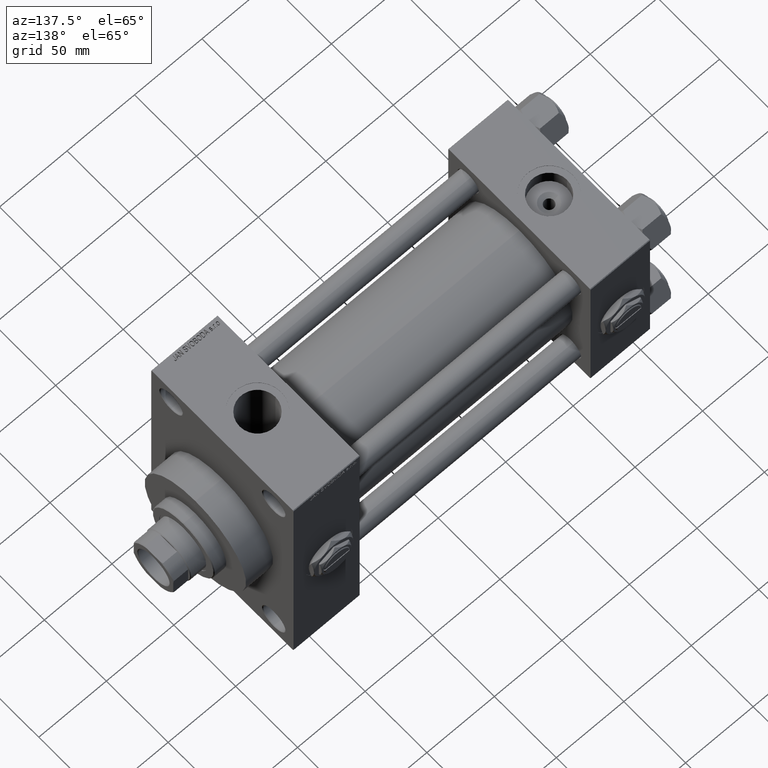
[diagram: clean part render]
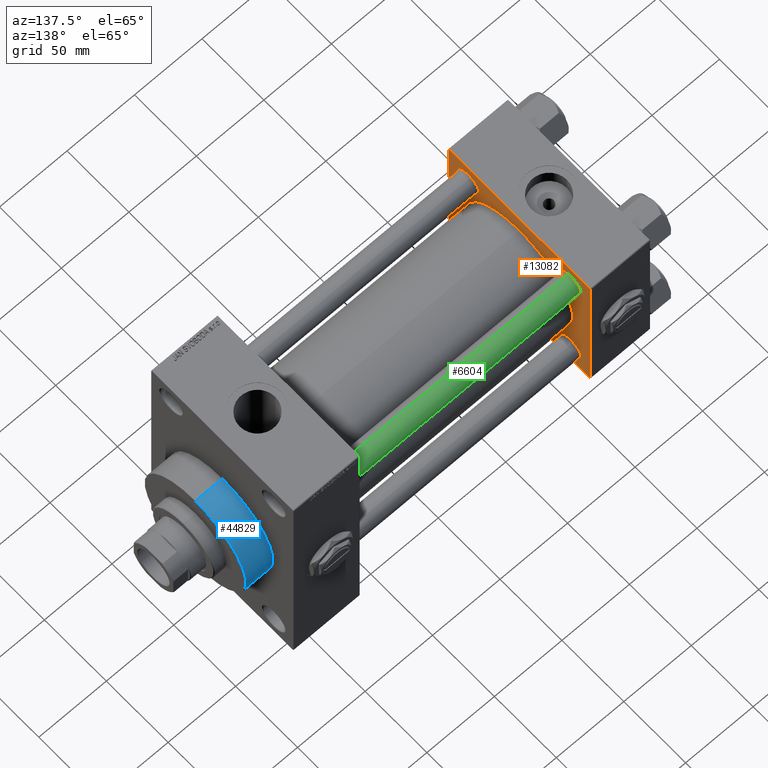
[diagram: same view with three faces highlighted in distinct colors, each labeled with its STEP entity id]
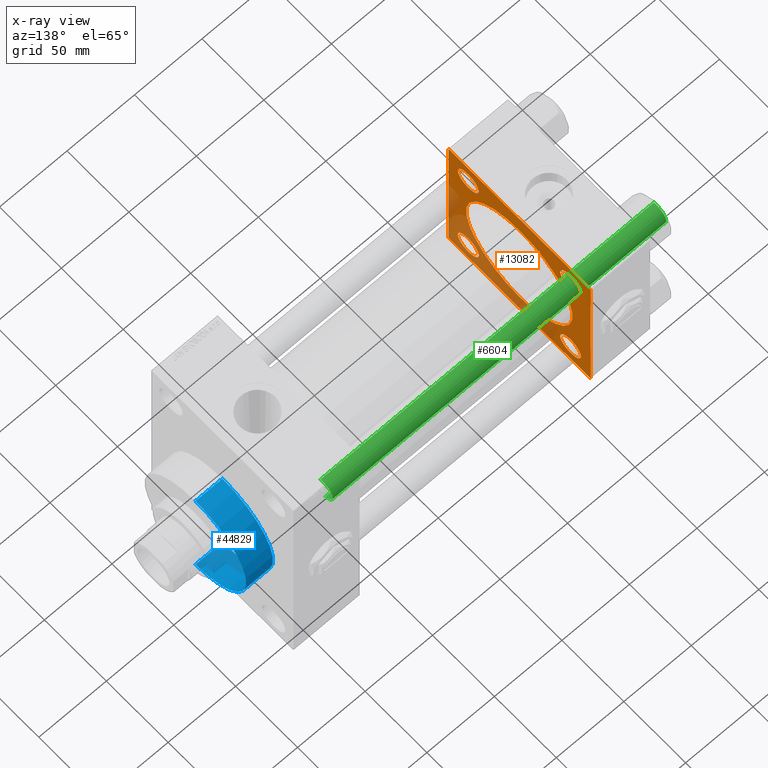
[diagram: x-ray of the same camera — body ghosted, the three highlighted faces saturated]
A machine part, auxiliary view with three faces highlighted in distinct colors.
The next image is the same camera in x-ray (body ghosted, the three faces saturated) — at least one of them is partly hidden behind the body in this view.
Their STEP definitions:

[orange] entity #13082 — the highlighted planar face has unit normal (-1, 0, 0).
#437 = DIRECTION ( 'NONE',  ( 0.000000000000000000, 0.000000000000000000, 1.000000000000000000 ) ) ;
#857 = DIRECTION ( 'NONE',  ( 1.000000000000000000, -0.000000000000000000, 0.000000000000000000 ) ) ;
#912 = CARTESIAN_POINT ( 'NONE',  ( 44.00000000000000000, 57.00000000000000711, 57.50000000000000711 ) ) ;
#1229 = CARTESIAN_POINT ( 'NONE',  ( 44.00000000000000000, 41.34999999999999432, -41.35000000000000142 ) ) ;
#1323 = CARTESIAN_POINT ( 'NONE',  ( 43.99999999999998579, -2.602085213965210642E-15, 0.000000000000000000 ) ) ;
#1857 = CARTESIAN_POINT ( 'NONE',  ( 44.00000000000000000, -41.34999999999998721, -49.85000000000007248 ) ) ;
#2641 = VERTEX_POINT ( 'NONE', #17071 ) ;
#2796 = ORIENTED_EDGE ( 'NONE', *, *, #8622, .T. ) ;
#2813 = VERTEX_POINT ( 'NONE', #48692 ) ;
#2977 = AXIS2_PLACEMENT_3D ( 'NONE', #17108, #48345, #13354 ) ;
#3046 = ORIENTED_EDGE ( 'NONE', *, *, #33716, .T. ) ;
#3883 = CARTESIAN_POINT ( 'NONE',  ( 44.00000000000000000, -57.00000000000000711, -57.50000000000000711 ) ) ;
#4023 = FACE_BOUND ( 'NONE', #24954, .T. ) ;
#4683 = EDGE_LOOP ( 'NONE', ( #30160, #44846 ) ) ;
#4697 = LINE ( 'NONE', #23330, #33983 ) ;
#5090 = DIRECTION ( 'NONE',  ( 0.000000000000000000, 0.000000000000000000, 1.000000000000000000 ) ) ;
#5256 = DIRECTION ( 'NONE',  ( -1.000000000000000000, 0.000000000000000000, -0.000000000000000000 ) ) ;
#5551 = LINE ( 'NONE', #36250, #19901 ) ;
#5767 = EDGE_CURVE ( 'NONE', #47026, #39082, #8000, .T. ) ;
#6054 = VECTOR ( 'NONE', #34438, 1000.000000000000114 ) ;
#6321 = VERTEX_POINT ( 'NONE', #11472 ) ;
#7026 = ORIENTED_EDGE ( 'NONE', *, *, #12239, .T. ) ;
#7263 = ORIENTED_EDGE ( 'NONE', *, *, #22021, .T. ) ;
#7476 = LINE ( 'NONE', #912, #6054 ) ;
#7504 = AXIS2_PLACEMENT_3D ( 'NONE', #27629, #34930, #437 ) ;
#7543 = CARTESIAN_POINT ( 'NONE',  ( 44.00000000000000000, 0.000000000000000000, 0.000000000000000000 ) ) ;
#7813 = FACE_BOUND ( 'NONE', #48220, .T. ) ;
#7862 = ORIENTED_EDGE ( 'NONE', *, *, #40149, .T. ) ;
#8000 = LINE ( 'NONE', #12515, #29299 ) ;
#8622 = EDGE_CURVE ( 'NONE', #22499, #2813, #41435, .T. ) ;
#9764 = CARTESIAN_POINT ( 'NONE',  ( 44.00000000000000000, 57.49999999999999289, 57.50000000000000711 ) ) ;
#9954 = DIRECTION ( 'NONE',  ( -1.000000000000000000, 0.000000000000000000, -0.000000000000000000 ) ) ;
#10229 = CARTESIAN_POINT ( 'NONE',  ( 44.00000000000000000, -41.34999999999998721, 49.85000000000007248 ) ) ;
#10464 = DIRECTION ( 'NONE',  ( 0.000000000000000000, 0.000000000000000000, 1.000000000000000000 ) ) ;
#10831 = PLANE ( 'NONE',  #40912 ) ;
#11370 = ORIENTED_EDGE ( 'NONE', *, *, #5767, .T. ) ;
#11432 = LINE ( 'NONE', #15937, #33946 ) ;
#11472 = CARTESIAN_POINT ( 'NONE',  ( 44.00000000000000000, 41.34999999999999432, -49.85000000000006537 ) ) ;
#11865 = VERTEX_POINT ( 'NONE', #3883 ) ;
#12107 = CARTESIAN_POINT ( 'NONE',  ( 44.00000000000000000, -41.34999999999998721, -41.35000000000000853 ) ) ;
#12117 = DIRECTION ( 'NONE',  ( 0.000000000000000000, 0.000000000000000000, 1.000000000000000000 ) ) ;
#12191 = CARTESIAN_POINT ( 'NONE',  ( 43.99999999999998579, -2.602085213965210642E-15, 0.000000000000000000 ) ) ;
#12239 = EDGE_CURVE ( 'NONE', #26975, #18577, #15853, .T. ) ;
#12274 = CARTESIAN_POINT ( 'NONE',  ( 44.00000000000000000, -57.00000000000000711, -57.50000000000000711 ) ) ;
#12515 = CARTESIAN_POINT ( 'NONE',  ( 44.00000000000000000, 57.49999999999999289, -57.00000000000000711 ) ) ;
#12907 = VERTEX_POINT ( 'NONE', #16195 ) ;
#13082 = ADVANCED_FACE ( 'NONE', ( #4023, #14582, #30471, #42298, #7813, #26185 ), #10831, .F. ) ;
#13170 = CIRCLE ( 'NONE', #25245, 8.500000000000063949 ) ;
#13350 = DIRECTION ( 'NONE',  ( 0.000000000000000000, 0.000000000000000000, -1.000000000000000000 ) ) ;
#13354 = DIRECTION ( 'NONE',  ( 0.000000000000000000, 0.000000000000000000, 1.000000000000000000 ) ) ;
#14582 = FACE_BOUND ( 'NONE', #25284, .T. ) ;
#14644 = DIRECTION ( 'NONE',  ( 0.000000000000000000, 0.000000000000000000, 1.000000000000000000 ) ) ;
#15220 = ORIENTED_EDGE ( 'NONE', *, *, #18094, .T. ) ;
#15498 = CIRCLE ( 'NONE', #38830, 8.500000000000063949 ) ;
#15512 = AXIS2_PLACEMENT_3D ( 'NONE', #21706, #45119, #14644 ) ;
#15669 = CARTESIAN_POINT ( 'NONE',  ( 44.00000000000000000, 57.49999999999999289, -57.00000000000000711 ) ) ;
#15711 = EDGE_CURVE ( 'NONE', #47026, #11865, #4697, .T. ) ;
#15743 = VERTEX_POINT ( 'NONE', #23569 ) ;
#15853 = CIRCLE ( 'NONE', #2977, 8.500000000000063949 ) ;
#15937 = CARTESIAN_POINT ( 'NONE',  ( 44.00000000000000000, 57.49999999999999289, 57.50000000000000711 ) ) ;
#16032 = DIRECTION ( 'NONE',  ( -0.000000000000000000, 0.7071067811865376918, 0.7071067811865573427 ) ) ;
#16195 = CARTESIAN_POINT ( 'NONE',  ( 44.00000000000000000, 41.34999999999999432, -32.84999999999994458 ) ) ;
#16226 = EDGE_CURVE ( 'NONE', #18577, #26975, #37204, .T. ) ;
#16635 = CARTESIAN_POINT ( 'NONE',  ( 44.00000000000000000, 57.00000000000002132, -57.49999999999999289 ) ) ;
#16679 = EDGE_CURVE ( 'NONE', #25761, #41821, #48513, .T. ) ;
#17071 = CARTESIAN_POINT ( 'NONE',  ( 43.99999999999998579, -2.602085213965210642E-15, 43.00000000000000000 ) ) ;
#17108 = CARTESIAN_POINT ( 'NONE',  ( 44.00000000000000000, -41.34999999999998721, 41.35000000000000853 ) ) ;
#17420 = ORIENTED_EDGE ( 'NONE', *, *, #28039, .T. ) ;
#18094 = EDGE_CURVE ( 'NONE', #23208, #15743, #11432, .T. ) ;
#18577 = VERTEX_POINT ( 'NONE', #34415 ) ;
#19318 = CIRCLE ( 'NONE', #33009, 8.500000000000063949 ) ;
#19901 = VECTOR ( 'NONE', #13350, 1000.000000000000000 ) ;
#20200 = EDGE_LOOP ( 'NONE', ( #23980, #7026 ) ) ;
#20354 = CARTESIAN_POINT ( 'NONE',  ( 44.00000000000000000, 57.49999999999999289, 57.00000000000003553 ) ) ;
#20631 = DIRECTION ( 'NONE',  ( -1.000000000000000000, 0.000000000000000000, -0.000000000000000000 ) ) ;
#21706 = CARTESIAN_POINT ( 'NONE',  ( 44.00000000000000000, -41.34999999999998721, 41.35000000000000853 ) ) ;
#21853 = EDGE_LOOP ( 'NONE', ( #25641, #11370, #37522, #36681, #15220, #17420, #3046, #7263 ) ) ;
#22021 = EDGE_CURVE ( 'NONE', #42281, #11865, #24103, .T. ) ;
#22499 = VERTEX_POINT ( 'NONE', #1857 ) ;
#23208 = VERTEX_POINT ( 'NONE', #23758 ) ;
#23250 = DIRECTION ( 'NONE',  ( 0.000000000000000000, -1.000000000000000000, -1.206764157201257045E-16 ) ) ;
#23330 = CARTESIAN_POINT ( 'NONE',  ( 44.00000000000000000, 57.49999999999999289, -57.49999999999999289 ) ) ;
#23538 = DIRECTION ( 'NONE',  ( 0.000000000000000000, 0.000000000000000000, 1.000000000000000000 ) ) ;
#23569 = CARTESIAN_POINT ( 'NONE',  ( 44.00000000000000000, -57.00000000000003553, 57.49999999999999289 ) ) ;
#23758 = CARTESIAN_POINT ( 'NONE',  ( 44.00000000000000000, 57.00000000000000711, 57.50000000000000711 ) ) ;
#23980 = ORIENTED_EDGE ( 'NONE', *, *, #16226, .T. ) ;
#24103 = LINE ( 'NONE', #12274, #26902 ) ;
#24199 = LINE ( 'NONE', #9764, #40944 ) ;
#24399 = CARTESIAN_POINT ( 'NONE',  ( 44.00000000000000000, -41.34999999999998721, -41.35000000000000853 ) ) ;
#24954 = EDGE_LOOP ( 'NONE', ( #2796, #27896 ) ) ;
#25245 = AXIS2_PLACEMENT_3D ( 'NONE', #1229, #5256, #40457 ) ;
#25284 = EDGE_LOOP ( 'NONE', ( #7862, #36706 ) ) ;
#25289 = CIRCLE ( 'NONE', #33291, 8.500000000000063949 ) ;
#25549 = EDGE_CURVE ( 'NONE', #42802, #23208, #7476, .T. ) ;
#25641 = ORIENTED_EDGE ( 'NONE', *, *, #15711, .F. ) ;
#25761 = VERTEX_POINT ( 'NONE', #36630 ) ;
#26185 = FACE_OUTER_BOUND ( 'NONE', #21853, .T. ) ;
#26902 = VECTOR ( 'NONE', #35683, 1000.000000000000114 ) ;
#26975 = VERTEX_POINT ( 'NONE', #10229 ) ;
#27476 = DIRECTION ( 'NONE',  ( -1.000000000000000000, 0.000000000000000000, -0.000000000000000000 ) ) ;
#27537 = CARTESIAN_POINT ( 'NONE',  ( 44.00000000000000000, -57.50000000000000711, -57.00000000000000711 ) ) ;
#27562 = DIRECTION ( 'NONE',  ( 0.000000000000000000, 0.000000000000000000, 1.000000000000000000 ) ) ;
#27629 = CARTESIAN_POINT ( 'NONE',  ( 44.00000000000000000, 41.34999999999999432, 41.35000000000000142 ) ) ;
#27896 = ORIENTED_EDGE ( 'NONE', *, *, #39529, .T. ) ;
#28035 = DIRECTION ( 'NONE',  ( 1.000000000000000000, -0.000000000000000000, 0.000000000000000000 ) ) ;
#28039 = EDGE_CURVE ( 'NONE', #15743, #45394, #32894, .T. ) ;
#29171 = DIRECTION ( 'NONE',  ( 0.000000000000000000, 0.000000000000000000, 1.000000000000000000 ) ) ;
#29299 = VECTOR ( 'NONE', #16032, 1000.000000000000114 ) ;
#30160 = ORIENTED_EDGE ( 'NONE', *, *, #43129, .T. ) ;
#30450 = EDGE_CURVE ( 'NONE', #2641, #32964, #34406, .T. ) ;
#30471 = FACE_BOUND ( 'NONE', #20200, .T. ) ;
#30619 = DIRECTION ( 'NONE',  ( -1.000000000000000000, 0.000000000000000000, -0.000000000000000000 ) ) ;
#30710 = DIRECTION ( 'NONE',  ( -0.000000000000000000, 0.000000000000000000, 1.000000000000000000 ) ) ;
#31005 = CIRCLE ( 'NONE', #34235, 43.00000000000000000 ) ;
#32668 = CARTESIAN_POINT ( 'NONE',  ( 43.99999999999998579, 2.663896022368408223E-15, -43.00000000000000000 ) ) ;
#32894 = LINE ( 'NONE', #33126, #40695 ) ;
#32964 = VERTEX_POINT ( 'NONE', #32668 ) ;
#33009 = AXIS2_PLACEMENT_3D ( 'NONE', #24399, #20631, #29171 ) ;
#33126 = CARTESIAN_POINT ( 'NONE',  ( 44.00000000000000000, -57.50000000000000711, 57.00000000000000711 ) ) ;
#33291 = AXIS2_PLACEMENT_3D ( 'NONE', #44952, #9954, #10464 ) ;
#33716 = EDGE_CURVE ( 'NONE', #45394, #42281, #5551, .T. ) ;
#33946 = VECTOR ( 'NONE', #23250, 1000.000000000000000 ) ;
#33983 = VECTOR ( 'NONE', #45999, 1000.000000000000000 ) ;
#34235 = AXIS2_PLACEMENT_3D ( 'NONE', #1323, #28035, #5090 ) ;
#34406 = CIRCLE ( 'NONE', #44739, 43.00000000000000000 ) ;
#34415 = CARTESIAN_POINT ( 'NONE',  ( 44.00000000000000000, -41.34999999999998721, 32.84999999999995168 ) ) ;
#34438 = DIRECTION ( 'NONE',  ( 0.000000000000000000, -0.7071067811865573427, 0.7071067811865376918 ) ) ;
#34930 = DIRECTION ( 'NONE',  ( -1.000000000000000000, 0.000000000000000000, -0.000000000000000000 ) ) ;
#35683 = DIRECTION ( 'NONE',  ( 0.000000000000000000, 0.7071067811865474617, -0.7071067811865474617 ) ) ;
#36250 = CARTESIAN_POINT ( 'NONE',  ( 44.00000000000000000, -57.50000000000000711, 57.49999999999999289 ) ) ;
#36630 = CARTESIAN_POINT ( 'NONE',  ( 44.00000000000000000, 41.34999999999999432, 49.85000000000006537 ) ) ;
#36681 = ORIENTED_EDGE ( 'NONE', *, *, #25549, .T. ) ;
#36706 = ORIENTED_EDGE ( 'NONE', *, *, #42678, .T. ) ;
#37204 = CIRCLE ( 'NONE', #15512, 8.500000000000063949 ) ;
#37416 = EDGE_CURVE ( 'NONE', #42802, #39082, #24199, .T. ) ;
#37522 = ORIENTED_EDGE ( 'NONE', *, *, #37416, .F. ) ;
#38830 = AXIS2_PLACEMENT_3D ( 'NONE', #42691, #30619, #23538 ) ;
#39082 = VERTEX_POINT ( 'NONE', #15669 ) ;
#39529 = EDGE_CURVE ( 'NONE', #2813, #22499, #19318, .T. ) ;
#39549 = DIRECTION ( 'NONE',  ( 0.000000000000000000, 0.000000000000000000, -1.000000000000000000 ) ) ;
#40149 = EDGE_CURVE ( 'NONE', #6321, #12907, #15498, .T. ) ;
#40180 = DIRECTION ( 'NONE',  ( -0.000000000000000000, -0.7071067811865376918, -0.7071067811865573427 ) ) ;
#40457 = DIRECTION ( 'NONE',  ( 0.000000000000000000, 0.000000000000000000, 1.000000000000000000 ) ) ;
#40498 = CARTESIAN_POINT ( 'NONE',  ( 44.00000000000000000, 41.34999999999999432, 32.84999999999994458 ) ) ;
#40637 = AXIS2_PLACEMENT_3D ( 'NONE', #12107, #27476, #12117 ) ;
#40695 = VECTOR ( 'NONE', #40180, 1000.000000000000114 ) ;
#40752 = ORIENTED_EDGE ( 'NONE', *, *, #30450, .F. ) ;
#40912 = AXIS2_PLACEMENT_3D ( 'NONE', #7543, #41532, #30710 ) ;
#40944 = VECTOR ( 'NONE', #39549, 1000.000000000000000 ) ;
#41435 = CIRCLE ( 'NONE', #40637, 8.500000000000063949 ) ;
#41532 = DIRECTION ( 'NONE',  ( -1.000000000000000000, 0.000000000000000000, -0.000000000000000000 ) ) ;
#41821 = VERTEX_POINT ( 'NONE', #40498 ) ;
#42281 = VERTEX_POINT ( 'NONE', #27537 ) ;
#42298 = FACE_BOUND ( 'NONE', #4683, .T. ) ;
#42678 = EDGE_CURVE ( 'NONE', #12907, #6321, #13170, .T. ) ;
#42691 = CARTESIAN_POINT ( 'NONE',  ( 44.00000000000000000, 41.34999999999999432, -41.35000000000000142 ) ) ;
#42802 = VERTEX_POINT ( 'NONE', #20354 ) ;
#42812 = ORIENTED_EDGE ( 'NONE', *, *, #49247, .F. ) ;
#43129 = EDGE_CURVE ( 'NONE', #41821, #25761, #25289, .T. ) ;
#44739 = AXIS2_PLACEMENT_3D ( 'NONE', #12191, #857, #27562 ) ;
#44846 = ORIENTED_EDGE ( 'NONE', *, *, #16679, .T. ) ;
#44952 = CARTESIAN_POINT ( 'NONE',  ( 44.00000000000000000, 41.34999999999999432, 41.35000000000000142 ) ) ;
#45119 = DIRECTION ( 'NONE',  ( -1.000000000000000000, 0.000000000000000000, -0.000000000000000000 ) ) ;
#45394 = VERTEX_POINT ( 'NONE', #47024 ) ;
#45999 = DIRECTION ( 'NONE',  ( 0.000000000000000000, -1.000000000000000000, -1.206764157201257045E-16 ) ) ;
#47024 = CARTESIAN_POINT ( 'NONE',  ( 44.00000000000000000, -57.50000000000000711, 57.00000000000000711 ) ) ;
#47026 = VERTEX_POINT ( 'NONE', #16635 ) ;
#48220 = EDGE_LOOP ( 'NONE', ( #40752, #42812 ) ) ;
#48345 = DIRECTION ( 'NONE',  ( -1.000000000000000000, 0.000000000000000000, -0.000000000000000000 ) ) ;
#48513 = CIRCLE ( 'NONE', #7504, 8.500000000000063949 ) ;
#48692 = CARTESIAN_POINT ( 'NONE',  ( 44.00000000000000000, -41.34999999999998721, -32.84999999999995168 ) ) ;
#49247 = EDGE_CURVE ( 'NONE', #32964, #2641, #31005, .T. ) ;

[blue] entity #44829 — the highlighted cylindrical surface (partial cylindrical patch) has radius 41 mm, axis along (-1, -0, -0).
#5151 = DIRECTION ( 'NONE',  ( 1.000000000000000000, 0.000000000000000000, 0.000000000000000000 ) ) ;
#5908 = DIRECTION ( 'NONE',  ( -1.000000000000000000, -0.000000000000000000, -0.000000000000000000 ) ) ;
#5994 = CIRCLE ( 'NONE', #15674, 41.00000000000000000 ) ;
#6550 = DIRECTION ( 'NONE',  ( 0.000000000000000000, 0.000000000000000000, 1.000000000000000000 ) ) ;
#6611 = EDGE_CURVE ( 'NONE', #16440, #15076, #5994, .T. ) ;
#7414 = EDGE_CURVE ( 'NONE', #16440, #20951, #46893, .T. ) ;
#8369 = DIRECTION ( 'NONE',  ( 0.000000000000000000, 0.000000000000000000, -1.000000000000000000 ) ) ;
#10449 = CARTESIAN_POINT ( 'NONE',  ( 284.0000000000000568, 0.000000000000000000, 41.00000000000000000 ) ) ;
#12413 = ORIENTED_EDGE ( 'NONE', *, *, #6611, .F. ) ;
#12653 = DIRECTION ( 'NONE',  ( 1.000000000000000000, 0.000000000000000000, 0.000000000000000000 ) ) ;
#15076 = VERTEX_POINT ( 'NONE', #10449 ) ;
#15186 = VECTOR ( 'NONE', #5908, 1000.000000000000000 ) ;
#15620 = AXIS2_PLACEMENT_3D ( 'NONE', #28824, #5151, #21239 ) ;
#15674 = AXIS2_PLACEMENT_3D ( 'NONE', #28254, #12653, #8369 ) ;
#15680 = ORIENTED_EDGE ( 'NONE', *, *, #36908, .F. ) ;
#16440 = VERTEX_POINT ( 'NONE', #36499 ) ;
#20951 = VERTEX_POINT ( 'NONE', #39748 ) ;
#21166 = DIRECTION ( 'NONE',  ( -1.000000000000000000, -0.000000000000000000, -0.000000000000000000 ) ) ;
#21239 = DIRECTION ( 'NONE',  ( 0.000000000000000000, 0.000000000000000000, -1.000000000000000000 ) ) ;
#22469 = EDGE_CURVE ( 'NONE', #20951, #25721, #42948, .T. ) ;
#25050 = LINE ( 'NONE', #32862, #15186 ) ;
#25703 = FACE_OUTER_BOUND ( 'NONE', #27793, .T. ) ;
#25721 = VERTEX_POINT ( 'NONE', #35654 ) ;
#27793 = EDGE_LOOP ( 'NONE', ( #12413, #32343, #30317, #15680 ) ) ;
#28254 = CARTESIAN_POINT ( 'NONE',  ( 284.0000000000000568, 0.000000000000000000, 0.000000000000000000 ) ) ;
#28824 = CARTESIAN_POINT ( 'NONE',  ( 264.0000000000000000, 0.000000000000000000, 0.000000000000000000 ) ) ;
#29724 = CYLINDRICAL_SURFACE ( 'NONE', #34163, 41.00000000000000000 ) ;
#30317 = ORIENTED_EDGE ( 'NONE', *, *, #22469, .T. ) ;
#30998 = VECTOR ( 'NONE', #42865, 1000.000000000000000 ) ;
#32343 = ORIENTED_EDGE ( 'NONE', *, *, #7414, .T. ) ;
#32862 = CARTESIAN_POINT ( 'NONE',  ( 284.0000000000000568, 0.000000000000000000, 41.00000000000000000 ) ) ;
#34163 = AXIS2_PLACEMENT_3D ( 'NONE', #41042, #21166, #6550 ) ;
#35654 = CARTESIAN_POINT ( 'NONE',  ( 264.0000000000000000, 0.000000000000000000, 41.00000000000000000 ) ) ;
#36499 = CARTESIAN_POINT ( 'NONE',  ( 284.0000000000000568, 5.021051876504148963E-15, -41.00000000000000000 ) ) ;
#36908 = EDGE_CURVE ( 'NONE', #15076, #25721, #25050, .T. ) ;
#39748 = CARTESIAN_POINT ( 'NONE',  ( 264.0000000000000000, 5.021051876504148963E-15, -41.00000000000000000 ) ) ;
#41042 = CARTESIAN_POINT ( 'NONE',  ( 284.0000000000000568, 0.000000000000000000, 0.000000000000000000 ) ) ;
#42865 = DIRECTION ( 'NONE',  ( -1.000000000000000000, -0.000000000000000000, -0.000000000000000000 ) ) ;
#42948 = CIRCLE ( 'NONE', #15620, 41.00000000000000000 ) ;
#44829 = ADVANCED_FACE ( 'NONE', ( #25703 ), #29724, .T. ) ;
#46893 = LINE ( 'NONE', #47153, #30998 ) ;
#47153 = CARTESIAN_POINT ( 'NONE',  ( 284.0000000000000568, 5.021051876504148963E-15, -41.00000000000000000 ) ) ;

[green] entity #6604 — the highlighted cylindrical surface (edge-blend (fillet) strip) has radius 8 mm, axis along (-1, -0, 0).
#192 = EDGE_CURVE ( 'NONE', #25960, #26557, #3491, .T. ) ;
#3491 = CIRCLE ( 'NONE', #32461, 8.000000000000000000 ) ;
#6205 = CIRCLE ( 'NONE', #47232, 8.000000000000000000 ) ;
#6604 = ADVANCED_FACE ( 'NONE', ( #16152 ), #35805, .T. ) ;
#7101 = CARTESIAN_POINT ( 'NONE',  ( 0.000000000000000000, 0.000000000000000000, 247.5000000000000284 ) ) ;
#7416 = CARTESIAN_POINT ( 'NONE',  ( 8.000000000000000000, 9.797174393178825657E-16, 0.4999999999999726885 ) ) ;
#9572 = EDGE_LOOP ( 'NONE', ( #20431, #11153, #20808, #37968 ) ) ;
#10859 = VERTEX_POINT ( 'NONE', #47434 ) ;
#11153 = ORIENTED_EDGE ( 'NONE', *, *, #29308, .T. ) ;
#11668 = AXIS2_PLACEMENT_3D ( 'NONE', #32274, #31786, #35549 ) ;
#11949 = LINE ( 'NONE', #19239, #42419 ) ;
#13845 = CARTESIAN_POINT ( 'NONE',  ( -8.000000000000000000, 0.000000000000000000, 0.4999999999999726885 ) ) ;
#14490 = CARTESIAN_POINT ( 'NONE',  ( 0.000000000000000000, 0.000000000000000000, 0.4999999999999726885 ) ) ;
#14558 = LINE ( 'NONE', #37964, #41255 ) ;
#16152 = FACE_OUTER_BOUND ( 'NONE', #9572, .T. ) ;
#19239 = CARTESIAN_POINT ( 'NONE',  ( 8.000000000000000000, 9.797174393178825657E-16, 248.0000000000000000 ) ) ;
#20431 = ORIENTED_EDGE ( 'NONE', *, *, #29805, .T. ) ;
#20808 = ORIENTED_EDGE ( 'NONE', *, *, #192, .T. ) ;
#23211 = DIRECTION ( 'NONE',  ( 1.000000000000000000, 0.000000000000000000, 0.000000000000000000 ) ) ;
#25960 = VERTEX_POINT ( 'NONE', #7416 ) ;
#26557 = VERTEX_POINT ( 'NONE', #13845 ) ;
#29308 = EDGE_CURVE ( 'NONE', #40684, #25960, #11949, .T. ) ;
#29805 = EDGE_CURVE ( 'NONE', #10859, #40684, #6205, .T. ) ;
#30766 = DIRECTION ( 'NONE',  ( 0.000000000000000000, 0.000000000000000000, -1.000000000000000000 ) ) ;
#31786 = DIRECTION ( 'NONE',  ( -0.000000000000000000, -0.000000000000000000, -1.000000000000000000 ) ) ;
#32274 = CARTESIAN_POINT ( 'NONE',  ( 0.000000000000000000, 0.000000000000000000, 248.0000000000000000 ) ) ;
#32461 = AXIS2_PLACEMENT_3D ( 'NONE', #14490, #49239, #44967 ) ;
#34214 = DIRECTION ( 'NONE',  ( -0.000000000000000000, -0.000000000000000000, -1.000000000000000000 ) ) ;
#35549 = DIRECTION ( 'NONE',  ( -1.000000000000000000, 0.000000000000000000, 0.000000000000000000 ) ) ;
#35805 = CYLINDRICAL_SURFACE ( 'NONE', #11668, 8.000000000000000000 ) ;
#37964 = CARTESIAN_POINT ( 'NONE',  ( -8.000000000000000000, 0.000000000000000000, 248.0000000000000000 ) ) ;
#37968 = ORIENTED_EDGE ( 'NONE', *, *, #41860, .F. ) ;
#40684 = VERTEX_POINT ( 'NONE', #49180 ) ;
#41255 = VECTOR ( 'NONE', #34214, 1000.000000000000000 ) ;
#41860 = EDGE_CURVE ( 'NONE', #10859, #26557, #14558, .T. ) ;
#42419 = VECTOR ( 'NONE', #42899, 1000.000000000000000 ) ;
#42899 = DIRECTION ( 'NONE',  ( -0.000000000000000000, -0.000000000000000000, -1.000000000000000000 ) ) ;
#44967 = DIRECTION ( 'NONE',  ( 1.000000000000000000, 0.000000000000000000, 0.000000000000000000 ) ) ;
#47232 = AXIS2_PLACEMENT_3D ( 'NONE', #7101, #30766, #23211 ) ;
#47434 = CARTESIAN_POINT ( 'NONE',  ( -8.000000000000000000, 0.000000000000000000, 247.5000000000000284 ) ) ;
#49180 = CARTESIAN_POINT ( 'NONE',  ( 8.000000000000000000, 9.797174393178825657E-16, 247.5000000000000284 ) ) ;
#49239 = DIRECTION ( 'NONE',  ( -0.000000000000000000, -0.000000000000000000, 1.000000000000000000 ) ) ;